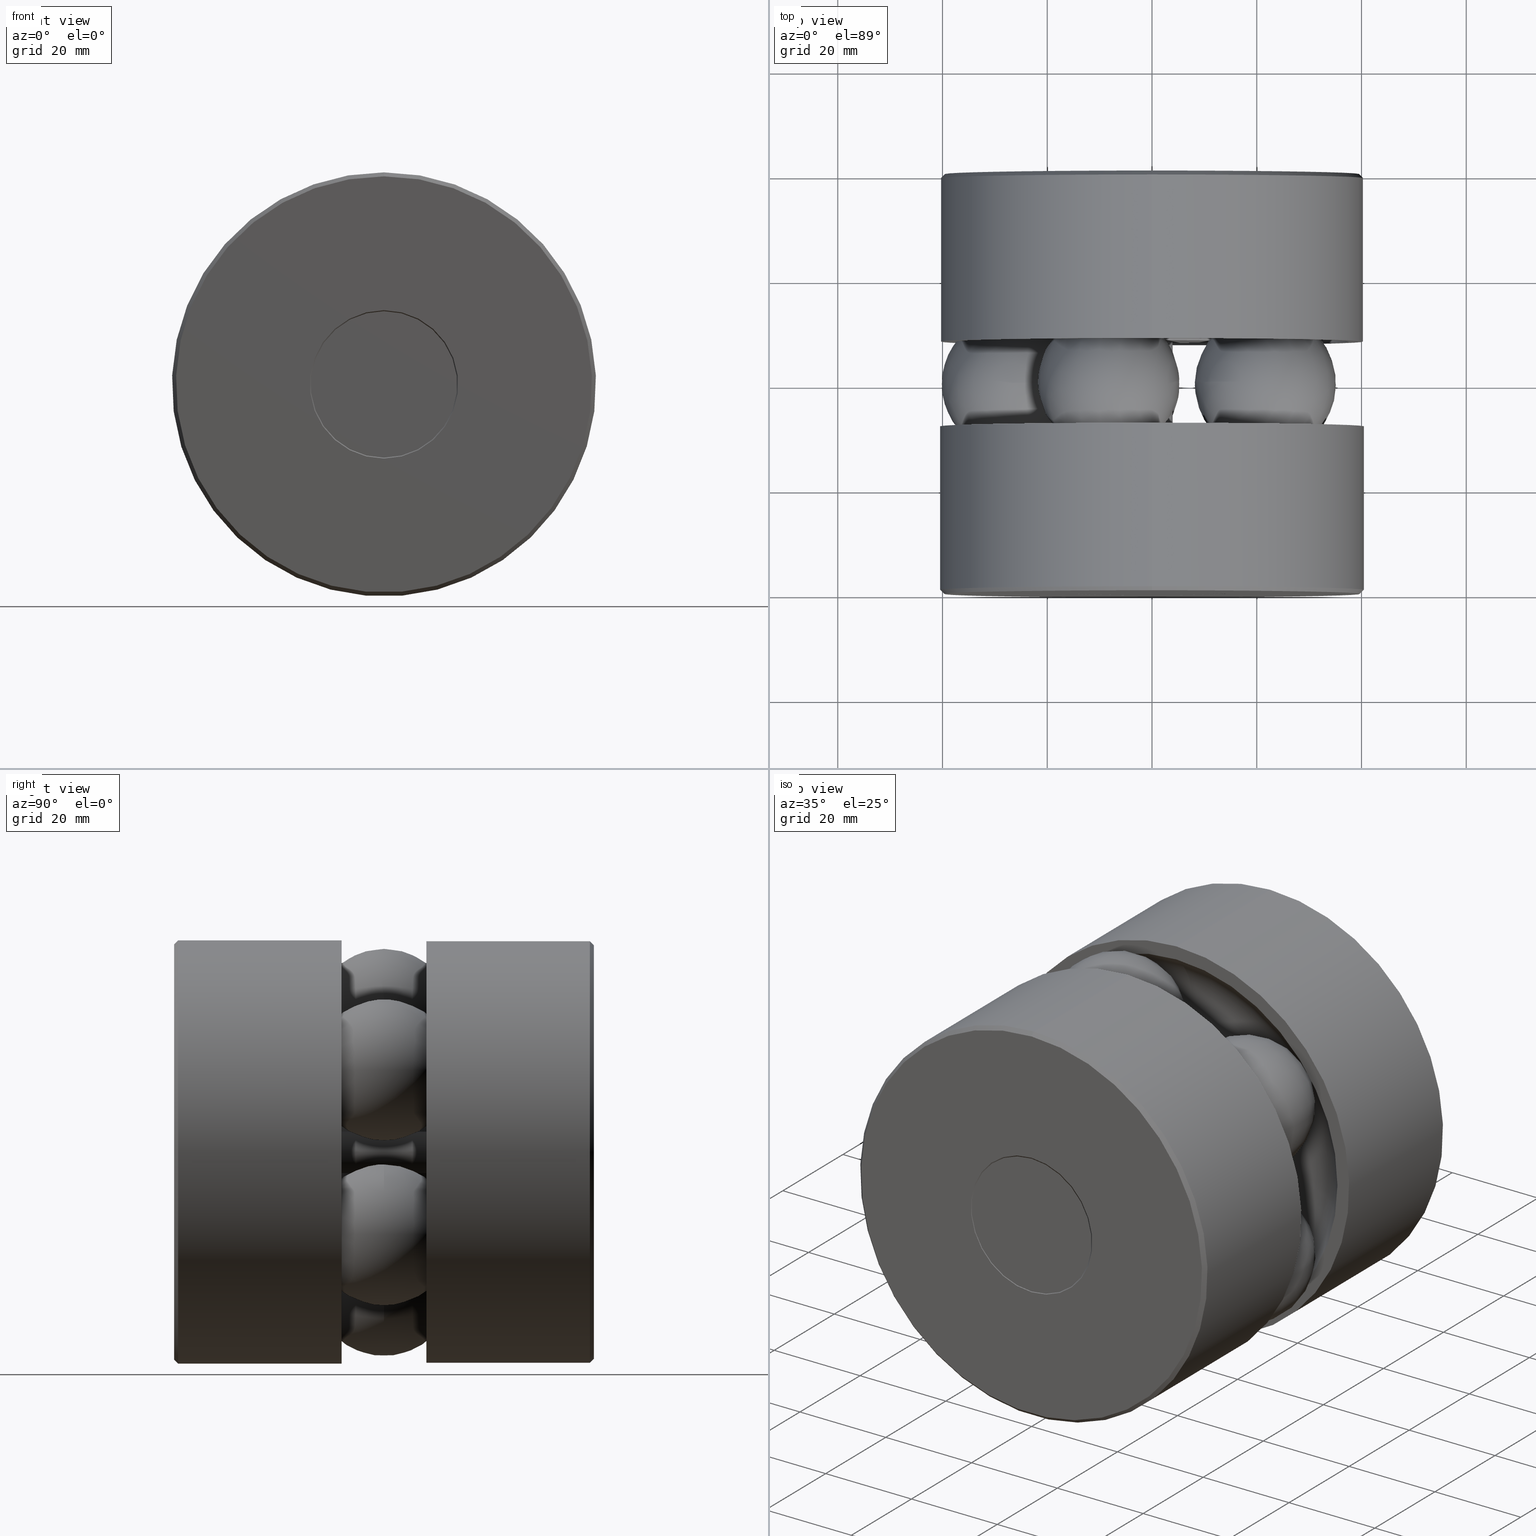
[diagram: canonical four-view strip — front | top / right | iso, engineering-drawing reading convention]
A machine part, canonical four-view strip (front | top / right | iso — engineering-drawing reading convention). The complete STEP part file that produces these views, byte-faithful:
ISO-10303-21;
HEADER;
FILE_DESCRIPTION (( 'STEP AP203' ),
    '1' );
FILE_NAME ('T-114RG_T-114RG-3003.step',
    '2016-02-04T16:15:54',
    ( '' ),
    ( '' ),
    'SwSTEP 2.0',
    'SolidWorks 2016',
    '' );
FILE_SCHEMA (( 'CONFIG_CONTROL_DESIGN' ));
ENDSEC;

DATA;
#1 = ORIENTED_EDGE ( 'NONE', *, *, #415, .F. ) ;
#2 = AXIS2_PLACEMENT_3D ( 'NONE', #74, #32, #29 ) ;
#3 = DIRECTION ( 'NONE',  ( 0.0000000000000000000, 0.0000000000000000000, 1.000000000000000000 ) ) ;
#4 = ORIENTED_EDGE ( 'NONE', *, *, #241, .T. ) ;
#5 = DIRECTION ( 'NONE',  ( -0.0000000000000000000, 1.000000000000000000, -0.0000000000000000000 ) ) ;
#6 = FACE_OUTER_BOUND ( 'NONE', #25, .T. ) ;
#7 = SECURITY_CLASSIFICATION_LEVEL ( 'unclassified' ) ;
#8 = DIRECTION ( 'NONE',  ( -0.0000000000000000000, 1.000000000000000000, -0.0000000000000000000 ) ) ;
#9 = CARTESIAN_POINT ( 'NONE',  ( 0.0000000000000000000, 3.125999999999999000, 0.0000000000000000000 ) ) ;
#10 = CYLINDRICAL_SURFACE ( 'NONE', #149, 1.594000000000000100 ) ;
#11 = EDGE_LOOP ( 'NONE', ( #449 ) ) ;
#12 = AXIS2_PLACEMENT_3D ( 'NONE', #456, #389, #387 ) ;
#13 = AXIS2_PLACEMENT_3D ( 'NONE', #534, #533, #513 ) ;
#14 = PRODUCT_DEFINITION ( 'UNKNOWN', '', #169, #218 ) ;
#15 = CARTESIAN_POINT ( 'NONE',  ( 0.0000000000000000000, 1.259399999999999200, 0.0000000000000000000 ) ) ;
#16 = LENGTH_MEASURE_WITH_UNIT ( LENGTH_MEASURE( 0.02539999999999999900 ), #521 );
#17 = CARTESIAN_POINT ( 'NONE',  ( 0.0000000000000000000, 1.896600000000000300, 0.0000000000000000000 ) ) ;
#18 = ORIENTED_EDGE ( 'NONE', *, *, #489, .T. ) ;
#19 = EDGE_LOOP ( 'NONE', ( #383 ) ) ;
#20 = FACE_OUTER_BOUND ( 'NONE', #289, .T. ) ;
#21 = DIRECTION ( 'NONE',  ( -0.0000000000000000000, 1.000000000000000000, -0.0000000000000000000 ) ) ;
#22 = COORDINATED_UNIVERSAL_TIME_OFFSET ( 5, 0, .BEHIND. ) ;
#23 = FACE_OUTER_BOUND ( 'NONE', #277, .T. ) ;
#24 = EDGE_CURVE ( 'NONE', #239, #239, #364, .T. ) ;
#25 = EDGE_LOOP ( 'NONE', ( #41 ) ) ;
#26 = CARTESIAN_POINT ( 'NONE',  ( 0.0000000000000000000, 3.155999999999999700, 0.0000000000000000000 ) ) ;
#27 = DIRECTION ( 'NONE',  ( 0.0000000000000000000, 0.0000000000000000000, 1.000000000000000000 ) ) ;
#28 = ADVANCED_FACE ( 'NONE', ( #446 ), #430, .T. ) ;
#29 = DIRECTION ( 'NONE',  ( 0.0000000000000000000, 0.0000000000000000000, 1.000000000000000000 ) ) ;
#30 = VERTEX_POINT ( 'NONE', #193 ) ;
#31 = EDGE_LOOP ( 'NONE', ( #178 ) ) ;
#32 = DIRECTION ( 'NONE',  ( -0.0000000000000000000, 1.000000000000000000, 0.0000000000000000000 ) ) ;
#33 = AXIS2_PLACEMENT_3D ( 'NONE', #26, #21, #27 ) ;
#34 = CLOSED_SHELL ( 'NONE', ( #529 ) ) ;
#35 = ORIENTED_EDGE ( 'NONE', *, *, #271, .F. ) ;
#36 = CARTESIAN_POINT ( 'NONE',  ( 0.0000000000000000000, 2.761499999999999800, 0.0000000000000000000 ) ) ;
#37 = LOCAL_TIME ( 11, 15, 54.00000000000000000, #162 ) ;
#38 = PLANE ( 'NONE',  #2 ) ;
#39 = FACE_OUTER_BOUND ( 'NONE', #259, .T. ) ;
#40 = ORIENTED_EDGE ( 'NONE', *, *, #24, .F. ) ;
#41 = ORIENTED_EDGE ( 'NONE', *, *, #395, .T. ) ;
#42 = ADVANCED_FACE ( 'NONE', ( #307, #339 ), #223, .T. ) ;
#43 = APPLICATION_PROTOCOL_DEFINITION ( 'international standard', 'config_control_design', 1994, #306 ) ;
#44 = MANIFOLD_SOLID_BREP ( 'BALLS[2]', #262 ) ;
#45 = CARTESIAN_POINT ( 'NONE',  ( 0.0000000000000000000, 2.761499999999999800, 0.1560000000000004700 ) ) ;
#46 = AXIS2_PLACEMENT_3D ( 'NONE', #468, #464, #461 ) ;
#47 = ADVANCED_FACE ( 'NONE', ( #294 ), #110, .T. ) ;
#48 = DIMENSIONAL_EXPONENTS ( 1.000000000000000000, 0.0000000000000000000, 0.0000000000000000000, 0.0000000000000000000, 0.0000000000000000000, 0.0000000000000000000, 0.0000000000000000000 ) ;
#49 = APPROVAL ( #325, 'UNSPECIFIED' ) ;
#50 = VERTEX_POINT ( 'NONE', #293 ) ;
#51 = DIRECTION ( 'NONE',  ( -0.0000000000000000000, 1.000000000000000000, -0.0000000000000000000 ) ) ;
#52 = ORIENTED_EDGE ( 'NONE', *, *, #90, .F. ) ;
#53 = EDGE_LOOP ( 'NONE', ( #220 ) ) ;
#54 = CIRCLE ( 'NONE', #451, 0.1610000000000004800 ) ;
#55 = ORIENTED_EDGE ( 'NONE', *, *, #311, .F. ) ;
#56 = APPROVAL_DATE_TIME ( #176, #202 ) ;
#57 = FACE_OUTER_BOUND ( 'NONE', #113, .T. ) ;
#58 = DIRECTION ( 'NONE',  ( 0.0000000000000000000, -1.000000000000000000, 0.0000000000000000000 ) ) ;
#59 = CARTESIAN_POINT ( 'NONE',  ( 0.0000000000000000000, 3.155999999999999700, 0.0000000000000000000 ) ) ;
#60 = ORIENTED_EDGE ( 'NONE', *, *, #147, .F. ) ;
#61 = EDGE_CURVE ( 'NONE', #92, #92, #238, .T. ) ;
#62 = CARTESIAN_POINT ( 'NONE',  ( 0.0000000000000000000, 0.0000000000000000000, 0.0000000000000000000 ) ) ;
#63 = VERTEX_POINT ( 'NONE', #344 ) ;
#64 = DIRECTION ( 'NONE',  ( 0.0000000000000000000, 0.0000000000000000000, 1.000000000000000000 ) ) ;
#65 = EDGE_LOOP ( 'NONE', ( #435 ) ) ;
#66 = ORIENTED_EDGE ( 'NONE', *, *, #415, .T. ) ;
#67 = AXIS2_PLACEMENT_3D ( 'NONE', #75, #219, #362 ) ;
#68 = DATE_TIME_ROLE ( 'creation_date' ) ;
#69 = APPROVAL_PERSON_ORGANIZATION ( #189, #202, #411 ) ;
#70 = FACE_OUTER_BOUND ( 'NONE', #438, .T. ) ;
#71 = EDGE_LOOP ( 'NONE', ( #347 ) ) ;
#72 = CARTESIAN_POINT ( 'NONE',  ( 0.0000000000000000000, 3.125999999999999000, 1.587000000000000000 ) ) ;
#73 = DIRECTION ( 'NONE',  ( 0.0000000000000000000, 0.0000000000000000000, -1.000000000000000000 ) ) ;
#74 = CARTESIAN_POINT ( 'NONE',  ( -0.5575710678118610500, 3.155999999999999700, 0.0000000000000000000 ) ) ;
#75 = CARTESIAN_POINT ( 'NONE',  ( 0.0000000000000000000, -1.396708663576377100E-017, 0.0000000000000000000 ) ) ;
#76 = DIRECTION ( 'NONE',  ( 0.0000000000000000000, 0.0000000000000000000, 1.000000000000000000 ) ) ;
#77 = VERTEX_POINT ( 'NONE', #195 ) ;
#78 = AXIS2_PLACEMENT_3D ( 'NONE', #417, #445, #355 ) ;
#79 = EDGE_LOOP ( 'NONE', ( #40 ) ) ;
#80 = ORIENTED_EDGE ( 'NONE', *, *, #535, .T. ) ;
#81 = CC_DESIGN_APPROVAL ( #49, ( #14 ) ) ;
#82 = DIRECTION ( 'NONE',  ( 0.0000000000000000000, 0.0000000000000000000, 1.000000000000000000 ) ) ;
#83 = CLOSED_SHELL ( 'NONE', ( #304 ) ) ;
#84 = COORDINATED_UNIVERSAL_TIME_OFFSET ( 5, 0, .BEHIND. ) ;
#85 = DIRECTION ( 'NONE',  ( 0.0000000000000000000, -0.0000000000000000000, -1.000000000000000000 ) ) ;
#86 = FACE_BOUND ( 'NONE', #106, .T. ) ;
#87 = DIRECTION ( 'NONE',  ( 0.0000000000000000000, -1.000000000000000000, 0.0000000000000000000 ) ) ;
#88 = DIRECTION ( 'NONE',  ( 0.0000000000000000000, 0.0000000000000000000, 1.000000000000000000 ) ) ;
#89 = DIRECTION ( 'NONE',  ( -0.0000000000000000000, 1.000000000000000000, -0.0000000000000000000 ) ) ;
#90 = EDGE_CURVE ( 'NONE', #315, #315, #243, .T. ) ;
#91 = AXIS2_PLACEMENT_3D ( 'NONE', #275, #285, #287 ) ;
#92 = VERTEX_POINT ( 'NONE', #72 ) ;
#93 = ADVANCED_FACE ( 'NONE', ( ), #173, .T. ) ;
#94 = APPROVAL_STATUS ( 'not_yet_approved' ) ;
#95 = EDGE_LOOP ( 'NONE', ( #481 ) ) ;
#96 = CARTESIAN_POINT ( 'NONE',  ( 0.0000000000000000000, 0.03000000000000011700, 0.0000000000000000000 ) ) ;
#97 = AXIS2_PLACEMENT_3D ( 'NONE', #36, #376, #236 ) ;
#98 = LOCAL_TIME ( 11, 15, 54.00000000000000000, #224 ) ;
#99 = DIRECTION ( 'NONE',  ( 0.0000000000000000000, 0.0000000000000000000, 1.000000000000000000 ) ) ;
#100 =( NAMED_UNIT ( * ) SI_UNIT ( $, .STERADIAN. ) SOLID_ANGLE_UNIT ( ) );
#101 = SPHERICAL_SURFACE ( 'NONE', #319, 0.5309999999999999200 ) ;
#102 = DIRECTION ( 'NONE',  ( 0.0000000000000000000, 0.0000000000000000000, 1.000000000000000000 ) ) ;
#103 = CIRCLE ( 'NONE', #358, 1.557000000000000400 ) ;
#104 = EDGE_LOOP ( 'NONE', ( #18 ) ) ;
#105 = CARTESIAN_POINT ( 'NONE',  ( 0.0000000000000000000, 3.155999999999999700, 0.5504999999999962100 ) ) ;
#106 = EDGE_LOOP ( 'NONE', ( #247 ) ) ;
#107 = AXIS2_PLACEMENT_3D ( 'NONE', #323, #320, #314 ) ;
#108 = DIRECTION ( 'NONE',  ( 0.0000000000000000000, -0.0000000000000000000, -1.000000000000000000 ) ) ;
#109 = CC_DESIGN_PERSON_AND_ORGANIZATION_ASSIGNMENT ( #204, #443, ( #14 ) ) ;
#110 = PLANE ( 'NONE',  #478 ) ;
#111 = DIRECTION ( 'NONE',  ( -0.0000000000000000000, 1.000000000000000000, -0.0000000000000000000 ) ) ;
#112 = ORGANIZATION ( 'UNSPECIFIED', 'UNSPECIFIED', '' ) ;
#113 = EDGE_LOOP ( 'NONE', ( #170 ) ) ;
#114 = CARTESIAN_POINT ( 'NONE',  ( 0.0000000000000000000, 0.0000000000000000000, 0.0000000000000000000 ) ) ;
#115 = FACE_BOUND ( 'NONE', #506, .T. ) ;
#116 = EDGE_CURVE ( 'NONE', #196, #196, #192, .T. ) ;
#117 = FACE_OUTER_BOUND ( 'NONE', #71, .T. ) ;
#118 = DIRECTION ( 'NONE',  ( 0.0000000000000000000, 0.0000000000000000000, -1.000000000000000000 ) ) ;
#119 = AXIS2_PLACEMENT_3D ( 'NONE', #356, #276, #520 ) ;
#120 = ORIENTED_EDGE ( 'NONE', *, *, #395, .F. ) ;
#121 = ORIENTED_EDGE ( 'NONE', *, *, #535, .F. ) ;
#122 = CARTESIAN_POINT ( 'NONE',  ( 0.0000000000000000000, -1.396708663576377100E-017, 0.0000000000000000000 ) ) ;
#123 = CARTESIAN_POINT ( 'NONE',  ( -0.6292000000000005400, 1.896600000000000300, 0.0000000000000000000 ) ) ;
#124 = EDGE_LOOP ( 'NONE', ( #55 ) ) ;
#125 = ORIENTED_EDGE ( 'NONE', *, *, #116, .F. ) ;
#126 = EDGE_LOOP ( 'NONE', ( #121 ) ) ;
#127 = CIRCLE ( 'NONE', #231, 0.5504999999999956600 ) ;
#128 = APPROVAL_DATE_TIME ( #250, #402 ) ;
#129 = CIRCLE ( 'NONE', #119, 1.587000000000000000 ) ;
#130 = ORIENTED_EDGE ( 'NONE', *, *, #366, .F. ) ;
#131 = FACE_OUTER_BOUND ( 'NONE', #267, .T. ) ;
#132 = AXIS2_PLACEMENT_3D ( 'NONE', #374, #337, #336 ) ;
#133 = PLANE ( 'NONE',  #465 ) ;
#134 = CC_DESIGN_DATE_AND_TIME_ASSIGNMENT ( #308, #68, ( #14 ) ) ;
#135 = DIRECTION ( 'NONE',  ( 0.0000000000000000000, -1.000000000000000000, 0.0000000000000000000 ) ) ;
#136 = DIRECTION ( 'NONE',  ( -0.0000000000000000000, 1.000000000000000000, -0.0000000000000000000 ) ) ;
#137 = CARTESIAN_POINT ( 'NONE',  ( 0.0000000000000000000, 0.0000000000000000000, 0.0000000000000000000 ) ) ;
#138 = EDGE_LOOP ( 'NONE', ( #158 ) ) ;
#139 = EDGE_LOOP ( 'NONE', ( #35 ) ) ;
#140 = FACE_BOUND ( 'NONE', #126, .T. ) ;
#141 = DIRECTION ( 'NONE',  ( 0.0000000000000000000, 0.0000000000000000000, 1.000000000000000000 ) ) ;
#142 = CLOSED_SHELL ( 'NONE', ( #453, #42, #450, #384, #350, #222, #348, #269 ) ) ;
#143 = APPROVAL_PERSON_ORGANIZATION ( #264, #402, #166 ) ;
#144 = CYLINDRICAL_SURFACE ( 'NONE', #187, 0.1560000000000002500 ) ;
#145 = EDGE_LOOP ( 'NONE', ( #209 ) ) ;
#146 = CARTESIAN_POINT ( 'NONE',  ( 0.0000000000000000000, 0.03000000000000011700, 1.594000000000000100 ) ) ;
#147 = EDGE_CURVE ( 'NONE', #77, #77, #327, .T. ) ;
#148 = CARTESIAN_POINT ( 'NONE',  ( 0.0000000000000000000, 0.3944999999999999600, 0.1560000000000000300 ) ) ;
#149 = AXIS2_PLACEMENT_3D ( 'NONE', #365, #313, #76 ) ;
#150 = DIRECTION ( 'NONE',  ( 0.0000000000000000000, 0.0000000000000000000, 1.000000000000000000 ) ) ;
#151 = MANIFOLD_SOLID_BREP ( 'BALLS[3]', #34 ) ;
#152 = DIRECTION ( 'NONE',  ( -0.0000000000000000000, 1.000000000000000000, -0.0000000000000000000 ) ) ;
#153 = VERTEX_POINT ( 'NONE', #345 ) ;
#154 = CARTESIAN_POINT ( 'NONE',  ( 0.0000000000000000000, 3.155999999999999700, 0.0000000000000000000 ) ) ;
#155 = ORIENTED_EDGE ( 'NONE', *, *, #366, .T. ) ;
#156 = EDGE_LOOP ( 'NONE', ( #171 ) ) ;
#157 = AXIS2_PLACEMENT_3D ( 'NONE', #62, #111, #286 ) ;
#158 = ORIENTED_EDGE ( 'NONE', *, *, #61, .T. ) ;
#159 = DIRECTION ( 'NONE',  ( -0.0000000000000000000, 1.000000000000000000, 0.0000000000000000000 ) ) ;
#160 = FACE_OUTER_BOUND ( 'NONE', #65, .T. ) ;
#161 = EDGE_LOOP ( 'NONE', ( #179 ) ) ;
#162 = COORDINATED_UNIVERSAL_TIME_OFFSET ( 5, 0, .BEHIND. ) ;
#163 = CONICAL_SURFACE ( 'NONE', #33, 0.5504999999999962100, 0.7853981633974430600 ) ;
#164 = EDGE_LOOP ( 'NONE', ( #80 ) ) ;
#165 = ADVANCED_FACE ( 'NONE', ( #261, #140 ), #349, .T. ) ;
#166 = APPROVAL_ROLE ( '' ) ;
#167 = AXIS2_PLACEMENT_3D ( 'NONE', #333, #328, #334 ) ;
#168 = VERTEX_POINT ( 'NONE', #423 ) ;
#169 = PRODUCT_DEFINITION_FORMATION_WITH_SPECIFIED_SOURCE ( 'ANY', '', #338, .NOT_KNOWN. ) ;
#170 = ORIENTED_EDGE ( 'NONE', *, *, #458, .T. ) ;
#171 = ORIENTED_EDGE ( 'NONE', *, *, #458, .F. ) ;
#172 = CARTESIAN_POINT ( 'NONE',  ( 0.0000000000000000000, 1.577999999999999800, 0.0000000000000000000 ) ) ;
#173 = SPHERICAL_SURFACE ( 'NONE', #13, 0.5309999999999999200 ) ;
#174 = PERSON_AND_ORGANIZATION_ROLE ( 'design_supplier' ) ;
#175 = MECHANICAL_CONTEXT ( 'NONE', #306, 'mechanical' ) ;
#176 = DATE_AND_TIME ( #295, #405 ) ;
#177 = FACE_OUTER_BOUND ( 'NONE', #11, .T. ) ;
#178 = ORIENTED_EDGE ( 'NONE', *, *, #436, .T. ) ;
#179 = ORIENTED_EDGE ( 'NONE', *, *, #299, .T. ) ;
#180 = EDGE_CURVE ( 'NONE', #503, #503, #54, .T. ) ;
#181 = DIRECTION ( 'NONE',  ( 0.0000000000000000000, -0.0000000000000000000, -1.000000000000000000 ) ) ;
#182 = AXIS2_PLACEMENT_3D ( 'NONE', #298, #8, #351 ) ;
#183 = VERTEX_POINT ( 'NONE', #447 ) ;
#184 = ORIENTED_EDGE ( 'NONE', *, *, #489, .F. ) ;
#185 = EDGE_LOOP ( 'NONE', ( #120 ) ) ;
#186 = DIRECTION ( 'NONE',  ( 0.0000000000000000000, 0.0000000000000000000, 1.000000000000000000 ) ) ;
#187 = AXIS2_PLACEMENT_3D ( 'NONE', #203, #499, #217 ) ;
#188 = DIRECTION ( 'NONE',  ( -0.0000000000000000000, 1.000000000000000000, -0.0000000000000000000 ) ) ;
#189 = PERSON_AND_ORGANIZATION ( #296, #112 ) ;
#190 = FACE_BOUND ( 'NONE', #139, .T. ) ;
#191 = ORIENTED_EDGE ( 'NONE', *, *, #340, .F. ) ;
#192 = CIRCLE ( 'NONE', #526, 0.1610000000000000300 ) ;
#193 = CARTESIAN_POINT ( 'NONE',  ( 0.0000000000000000000, 3.155999999999999700, 1.557000000000000400 ) ) ;
#194 = DIRECTION ( 'NONE',  ( -0.8090169943749507800, 0.0000000000000000000, -0.5877852522924687000 ) ) ;
#195 = CARTESIAN_POINT ( 'NONE',  ( 0.0000000000000000000, 1.259399999999999200, 0.6292000000000006500 ) ) ;
#196 = VERTEX_POINT ( 'NONE', #397 ) ;
#197 = APPROVAL_STATUS ( 'not_yet_approved' ) ;
#198 = AXIS2_PLACEMENT_3D ( 'NONE', #270, #268, #256 ) ;
#199 = EDGE_LOOP ( 'NONE', ( #125 ) ) ;
#200 = CARTESIAN_POINT ( 'NONE',  ( 0.0000000000000000000, 1.896600000000000300, 1.587000000000000000 ) ) ;
#201 = ORIENTED_EDGE ( 'NONE', *, *, #147, .T. ) ;
#202 = APPROVAL ( #94, 'UNSPECIFIED' ) ;
#203 = CARTESIAN_POINT ( 'NONE',  ( 0.0000000000000000000, 0.0000000000000000000, 0.0000000000000000000 ) ) ;
#204 = PERSON_AND_ORGANIZATION ( #296, #112 ) ;
#205 = CYLINDRICAL_SURFACE ( 'NONE', #420, 0.1610000000000001200 ) ;
#206 = APPLICATION_CONTEXT ( 'configuration controlled 3d designs of mechanical parts and assemblies' ) ;
#207 = DIRECTION ( 'NONE',  ( 0.0000000000000000000, 0.0000000000000000000, 1.000000000000000000 ) ) ;
#208 = EDGE_LOOP ( 'NONE', ( #488 ) ) ;
#209 = ORIENTED_EDGE ( 'NONE', *, *, #510, .T. ) ;
#210 = EDGE_LOOP ( 'NONE', ( #473 ) ) ;
#211 = EDGE_CURVE ( 'NONE', #409, #409, #505, .T. ) ;
#212 = DIRECTION ( 'NONE',  ( -0.0000000000000000000, 1.000000000000000000, -0.0000000000000000000 ) ) ;
#213 = DIRECTION ( 'NONE',  ( 0.0000000000000000000, 0.0000000000000000000, 1.000000000000000000 ) ) ;
#214 = AXIS2_PLACEMENT_3D ( 'NONE', #476, #454, #108 ) ;
#215 = CONICAL_SURFACE ( 'NONE', #182, 0.1610000000000004800, 0.7853981633974433900 ) ;
#216 = CLOSED_SHELL ( 'NONE', ( #93 ) ) ;
#217 = DIRECTION ( 'NONE',  ( 0.0000000000000000000, 0.0000000000000000000, 1.000000000000000000 ) ) ;
#218 = DESIGN_CONTEXT ( 'detailed design', #206, 'design' ) ;
#219 = DIRECTION ( 'NONE',  ( -0.0000000000000000000, 1.000000000000000000, -0.0000000000000000000 ) ) ;
#220 = ORIENTED_EDGE ( 'NONE', *, *, #340, .T. ) ;
#221 = ADVANCED_BREP_SHAPE_REPRESENTATION ( 'T-114RG_T-114RG-3003', ( #439, #357, #523, #410, #491, #44, #151, #254, #504 ), #408 ) ;
#222 = ADVANCED_FACE ( 'NONE', ( #131, #115 ), #401, .T. ) ;
#223 = CONICAL_SURFACE ( 'NONE', #385, 1.594000000000000100, 0.7853981633974430600 ) ;
#224 = COORDINATED_UNIVERSAL_TIME_OFFSET ( 5, 0, .BEHIND. ) ;
#225 = CARTESIAN_POINT ( 'NONE',  ( 0.0000000000000000000, 0.0000000000000000000, 0.0000000000000000000 ) ) ;
#226 = DIRECTION ( 'NONE',  ( -0.8090169943749422300, 0.0000000000000000000, 0.5877852522924802400 ) ) ;
#227 = DIRECTION ( 'NONE',  ( -0.5877852522924687000, 0.0000000000000000000, 0.8090169943749507800 ) ) ;
#228 = FACE_OUTER_BOUND ( 'NONE', #495, .T. ) ;
#229 = EDGE_LOOP ( 'NONE', ( #524 ) ) ;
#230 = DIRECTION ( 'NONE',  ( -0.0000000000000000000, 1.000000000000000000, -0.0000000000000000000 ) ) ;
#231 = AXIS2_PLACEMENT_3D ( 'NONE', #225, #212, #207 ) ;
#232 = CARTESIAN_POINT ( 'NONE',  ( 0.8527039120711981100, 1.577999999999999800, 0.6195256559162619600 ) ) ;
#233 = DIRECTION ( 'NONE',  ( 0.0000000000000000000, 0.0000000000000000000, 1.000000000000000000 ) ) ;
#234 = CC_DESIGN_APPROVAL ( #202, ( #169 ) ) ;
#235 = CARTESIAN_POINT ( 'NONE',  ( 0.0000000000000000000, 1.259399999999999600, 0.0000000000000000000 ) ) ;
#236 = DIRECTION ( 'NONE',  ( 0.0000000000000000000, 0.0000000000000000000, 1.000000000000000000 ) ) ;
#237 = EDGE_LOOP ( 'NONE', ( #66 ) ) ;
#238 = CIRCLE ( 'NONE', #452, 1.587000000000000000 ) ;
#239 = VERTEX_POINT ( 'NONE', #148 ) ;
#240 = ORIENTED_EDGE ( 'NONE', *, *, #311, .T. ) ;
#241 = EDGE_CURVE ( 'NONE', #302, #302, #375, .T. ) ;
#242 = AXIS2_PLACEMENT_3D ( 'NONE', #235, #51, #102 ) ;
#243 = CIRCLE ( 'NONE', #502, 0.6292000000000005400 ) ;
#244 = ORIENTED_EDGE ( 'NONE', *, *, #211, .F. ) ;
#245 = DIRECTION ( 'NONE',  ( 0.3090169943749582200, 0.0000000000000000000, 0.9510565162951500900 ) ) ;
#246 = CARTESIAN_POINT ( 'NONE',  ( 0.0000000000000000000, 0.03000000000000011700, 0.0000000000000000000 ) ) ;
#247 = ORIENTED_EDGE ( 'NONE', *, *, #116, .T. ) ;
#248 = PLANE ( 'NONE',  #214 ) ;
#249 = FACE_OUTER_BOUND ( 'NONE', #199, .T. ) ;
#250 = DATE_AND_TIME ( #367, #457 ) ;
#251 = FACE_OUTER_BOUND ( 'NONE', #185, .T. ) ;
#252 = CARTESIAN_POINT ( 'NONE',  ( 0.8527039120711891200, 1.577999999999999800, -0.6195256559162742900 ) ) ;
#253 = DIRECTION ( 'NONE',  ( 0.0000000000000000000, 0.0000000000000000000, 1.000000000000000000 ) ) ;
#254 = MANIFOLD_SOLID_BREP ( 'BALLS[4]', #83 ) ;
#255 = ADVANCED_FACE ( 'NONE', ( #160, #20 ), #483, .F. ) ;
#256 = DIRECTION ( 'NONE',  ( 0.0000000000000000000, 0.0000000000000000000, 1.000000000000000000 ) ) ;
#257 = AXIS2_PLACEMENT_3D ( 'NONE', #281, #279, #245 ) ;
#258 = CC_DESIGN_PERSON_AND_ORGANIZATION_ASSIGNMENT ( #486, #300, ( #169 ) ) ;
#259 = EDGE_LOOP ( 'NONE', ( #244 ) ) ;
#260 = EDGE_LOOP ( 'NONE', ( #1 ) ) ;
#261 = FACE_OUTER_BOUND ( 'NONE', #138, .T. ) ;
#262 = CLOSED_SHELL ( 'NONE', ( #316 ) ) ;
#263 = PERSON_AND_ORGANIZATION_ROLE ( 'classification_officer' ) ;
#264 = PERSON_AND_ORGANIZATION ( #296, #112 ) ;
#265 = CIRCLE ( 'NONE', #97, 0.1560000000000004700 ) ;
#266 = EDGE_LOOP ( 'NONE', ( #130 ) ) ;
#267 = EDGE_LOOP ( 'NONE', ( #201 ) ) ;
#268 = DIRECTION ( 'NONE',  ( -0.0000000000000000000, 1.000000000000000000, -0.0000000000000000000 ) ) ;
#269 = ADVANCED_FACE ( 'NONE', ( #6, #425 ), #343, .T. ) ;
#270 = CARTESIAN_POINT ( 'NONE',  ( 0.0000000000000000000, 1.259399999999999200, 0.0000000000000000000 ) ) ;
#271 = EDGE_CURVE ( 'NONE', #183, #183, #467, .T. ) ;
#272 = AXIS2_PLACEMENT_3D ( 'NONE', #114, #369, #522 ) ;
#273 = ADVANCED_FACE ( 'NONE', ( #322, #359 ), #434, .T. ) ;
#274 = VERTEX_POINT ( 'NONE', #419 ) ;
#275 = CARTESIAN_POINT ( 'NONE',  ( -0.5575710678118605000, -8.411894062987051900E-017, 0.0000000000000000000 ) ) ;
#276 = DIRECTION ( 'NONE',  ( -0.0000000000000000000, 1.000000000000000000, -0.0000000000000000000 ) ) ;
#277 = EDGE_LOOP ( 'NONE', ( #155 ) ) ;
#278 = ORIENTED_EDGE ( 'NONE', *, *, #180, .F. ) ;
#279 = DIRECTION ( 'NONE',  ( 0.9510565162951500900, 0.0000000000000000000, -0.3090169943749582200 ) ) ;
#280 = TOROIDAL_SURFACE ( 'NONE', #370, 1.054000000000000000, 0.5310000000000000300 ) ;
#281 = CARTESIAN_POINT ( 'NONE',  ( -0.3257039120712059700, 1.577999999999999800, -1.002413568175088100 ) ) ;
#282 = PERSON_AND_ORGANIZATION ( #296, #112 ) ;
#283 = CIRCLE ( 'NONE', #67, 0.5575710678118605000 ) ;
#284 = ORIENTED_EDGE ( 'NONE', *, *, #510, .F. ) ;
#285 = DIRECTION ( 'NONE',  ( 0.0000000000000000000, -1.000000000000000000, 0.0000000000000000000 ) ) ;
#286 = DIRECTION ( 'NONE',  ( 0.0000000000000000000, 0.0000000000000000000, 1.000000000000000000 ) ) ;
#287 = DIRECTION ( 'NONE',  ( 0.0000000000000000000, -0.0000000000000000000, -1.000000000000000000 ) ) ;
#288 = VERTEX_POINT ( 'NONE', #146 ) ;
#289 = EDGE_LOOP ( 'NONE', ( #284 ) ) ;
#290 = AXIS2_PLACEMENT_3D ( 'NONE', #154, #152, #150 ) ;
#291 = CLOSED_SHELL ( 'NONE', ( #28, #47, #414, #428, #273 ) ) ;
#292 = CC_DESIGN_PERSON_AND_ORGANIZATION_ASSIGNMENT ( #392, #174, ( #169 ) ) ;
#293 = CARTESIAN_POINT ( 'NONE',  ( 0.0000000000000000000, -1.396708663576377100E-017, 0.5575710678118605000 ) ) ;
#294 = FACE_OUTER_BOUND ( 'NONE', #53, .T. ) ;
#295 = CALENDAR_DATE ( 2016, 4, 2 ) ;
#296 = PERSON ( 'UNSPECIFIED', 'UNSPECIFIED', 'UNSPECIFIED', ('UNSPECIFIED'), ('UNSPECIFIED'), ('UNSPECIFIED') ) ;
#297 = CONICAL_SURFACE ( 'NONE', #442, 0.5575710678118605000, 0.7853981633974428400 ) ;
#298 = CARTESIAN_POINT ( 'NONE',  ( 0.0000000000000000000, 2.759428932188135300, 0.0000000000000000000 ) ) ;
#299 = EDGE_CURVE ( 'NONE', #63, #63, #416, .T. ) ;
#300 = PERSON_AND_ORGANIZATION_ROLE ( 'creator' ) ;
#301 = AXIS2_PLACEMENT_3D ( 'NONE', #341, #118, #485 ) ;
#302 = VERTEX_POINT ( 'NONE', #310 ) ;
#303 = CARTESIAN_POINT ( 'NONE',  ( 0.0000000000000000000, 0.0000000000000000000, 0.5504999999999956600 ) ) ;
#304 = ADVANCED_FACE ( 'NONE', ( ), #542, .T. ) ;
#305 =( CONVERSION_BASED_UNIT ( 'INCH', #16 ) LENGTH_UNIT ( ) NAMED_UNIT ( #48 ) );
#306 = APPLICATION_CONTEXT ( 'configuration controlled 3d designs of mechanical parts and assemblies' ) ;
#307 = FACE_BOUND ( 'NONE', #208, .T. ) ;
#308 = DATE_AND_TIME ( #412, #507 ) ;
#309 = FACE_OUTER_BOUND ( 'NONE', #260, .T. ) ;
#310 = CARTESIAN_POINT ( 'NONE',  ( 0.0000000000000000000, 1.896600000000000300, 0.1610000000000002800 ) ) ;
#311 = EDGE_CURVE ( 'NONE', #492, #492, #127, .T. ) ;
#312 = FACE_OUTER_BOUND ( 'NONE', #354, .T. ) ;
#313 = DIRECTION ( 'NONE',  ( -0.0000000000000000000, 1.000000000000000000, -0.0000000000000000000 ) ) ;
#314 = DIRECTION ( 'NONE',  ( 0.0000000000000000000, 0.0000000000000000000, 1.000000000000000000 ) ) ;
#315 = VERTEX_POINT ( 'NONE', #469 ) ;
#316 = ADVANCED_FACE ( 'NONE', ( ), #101, .T. ) ;
#317 = UNCERTAINTY_MEASURE_WITH_UNIT (LENGTH_MEASURE( 1.000000000000000100E-005 ), #305, 'distance_accuracy_value', 'NONE');
#318 = PERSON_AND_ORGANIZATION_ROLE ( 'design_owner' ) ;
#319 = AXIS2_PLACEMENT_3D ( 'NONE', #232, #227, #194 ) ;
#320 = DIRECTION ( 'NONE',  ( -0.0000000000000000000, 1.000000000000000000, -0.0000000000000000000 ) ) ;
#321 = SECURITY_CLASSIFICATION ( '', '', #7 ) ;
#322 = FACE_OUTER_BOUND ( 'NONE', #514, .T. ) ;
#323 = CARTESIAN_POINT ( 'NONE',  ( 0.0000000000000000000, 3.155999999999999700, 0.0000000000000000000 ) ) ;
#324 = APPROVAL_DATE_TIME ( #424, #49 ) ;
#325 = APPROVAL_STATUS ( 'not_yet_approved' ) ;
#326 = FACE_OUTER_BOUND ( 'NONE', #164, .T. ) ;
#327 = CIRCLE ( 'NONE', #46, 0.6292000000000006500 ) ;
#328 = DIRECTION ( 'NONE',  ( 0.0000000000000000000, -1.000000000000000000, 0.0000000000000000000 ) ) ;
#329 = AXIS2_PLACEMENT_3D ( 'NONE', #363, #188, #233 ) ;
#330 = CIRCLE ( 'NONE', #331, 1.478799999999999400 ) ;
#331 = AXIS2_PLACEMENT_3D ( 'NONE', #17, #377, #99 ) ;
#332 = CARTESIAN_POINT ( 'NONE',  ( -0.5504999999999956600, 0.0000000000000000000, 0.0000000000000000000 ) ) ;
#333 = CARTESIAN_POINT ( 'NONE',  ( 0.0000000000000000000, 0.3944999999999999600, 0.0000000000000000000 ) ) ;
#334 = DIRECTION ( 'NONE',  ( 0.0000000000000000000, 0.0000000000000000000, -1.000000000000000000 ) ) ;
#335 = APPROVAL_PERSON_ORGANIZATION ( #431, #49, #474 ) ;
#336 = DIRECTION ( 'NONE',  ( 0.0000000000000000000, 0.0000000000000000000, 1.000000000000000000 ) ) ;
#337 = DIRECTION ( 'NONE',  ( -0.0000000000000000000, 1.000000000000000000, 0.0000000000000000000 ) ) ;
#338 = PRODUCT ( 'T-114RG_T-114RG-3003', 'T-114RG_T-114RG-3003', '', ( #175 ) ) ;
#339 = FACE_OUTER_BOUND ( 'NONE', #266, .T. ) ;
#340 = EDGE_CURVE ( 'NONE', #398, #398, #532, .T. ) ;
#341 = CARTESIAN_POINT ( 'NONE',  ( -1.054000000000000000, 1.577999999999999800, 0.0000000000000000000 ) ) ;
#342 = CLOSED_SHELL ( 'NONE', ( #501, #463, #381, #255, #460, #421, #165, #390 ) ) ;
#343 = PLANE ( 'NONE',  #132 ) ;
#344 = CARTESIAN_POINT ( 'NONE',  ( 0.0000000000000000000, 1.259399999999999200, 1.478799999999999400 ) ) ;
#345 = CARTESIAN_POINT ( 'NONE',  ( 0.0000000000000000000, 1.896600000000000300, 1.478799999999999400 ) ) ;
#346 = FACE_BOUND ( 'NONE', #484, .T. ) ;
#347 = ORIENTED_EDGE ( 'NONE', *, *, #241, .F. ) ;
#348 = ADVANCED_FACE ( 'NONE', ( #519, #312 ), #280, .F. ) ;
#349 = CONICAL_SURFACE ( 'NONE', #427, 1.557000000000000400, 0.7853981633974255200 ) ;
#350 = ADVANCED_FACE ( 'NONE', ( #509, #249 ), #205, .F. ) ;
#351 = DIRECTION ( 'NONE',  ( 0.0000000000000000000, 0.0000000000000000000, 1.000000000000000000 ) ) ;
#352 = CC_DESIGN_PERSON_AND_ORGANIZATION_ASSIGNMENT ( #282, #263, ( #321 ) ) ;
#353 = FACE_OUTER_BOUND ( 'NONE', #156, .T. ) ;
#354 = EDGE_LOOP ( 'NONE', ( #60 ) ) ;
#355 = DIRECTION ( 'NONE',  ( 0.0000000000000000000, 0.0000000000000000000, 1.000000000000000000 ) ) ;
#356 = CARTESIAN_POINT ( 'NONE',  ( 0.0000000000000000000, 1.896600000000000300, 0.0000000000000000000 ) ) ;
#357 = MANIFOLD_SOLID_BREP ( 'Revolve2[2]', #342 ) ;
#358 = AXIS2_PLACEMENT_3D ( 'NONE', #472, #404, #64 ) ;
#359 = FACE_BOUND ( 'NONE', #79, .T. ) ;
#360 = DIRECTION ( 'NONE',  ( 0.0000000000000000000, 0.0000000000000000000, 1.000000000000000000 ) ) ;
#361 = APPLICATION_PROTOCOL_DEFINITION ( 'international standard', 'config_control_design', 1994, #206 ) ;
#362 = DIRECTION ( 'NONE',  ( 0.0000000000000000000, 0.0000000000000000000, 1.000000000000000000 ) ) ;
#363 = CARTESIAN_POINT ( 'NONE',  ( 0.0000000000000000000, 0.3944999999999999600, 0.0000000000000000000 ) ) ;
#364 = CIRCLE ( 'NONE', #329, 0.1560000000000000300 ) ;
#365 = CARTESIAN_POINT ( 'NONE',  ( 0.0000000000000000000, 0.0000000000000000000, 0.0000000000000000000 ) ) ;
#366 = EDGE_CURVE ( 'NONE', #288, #288, #391, .T. ) ;
#367 = CALENDAR_DATE ( 2016, 4, 2 ) ;
#368 = EDGE_LOOP ( 'NONE', ( #52 ) ) ;
#369 = DIRECTION ( 'NONE',  ( -0.0000000000000000000, 1.000000000000000000, -0.0000000000000000000 ) ) ;
#370 = AXIS2_PLACEMENT_3D ( 'NONE', #172, #230, #141 ) ;
#371 = DIRECTION ( 'NONE',  ( -0.0000000000000000000, 1.000000000000000000, -0.0000000000000000000 ) ) ;
#372 = CARTESIAN_POINT ( 'NONE',  ( 0.0000000000000000000, 1.896600000000000300, 0.0000000000000000000 ) ) ;
#373 = CC_DESIGN_DATE_AND_TIME_ASSIGNMENT ( #378, #490, ( #321 ) ) ;
#374 = CARTESIAN_POINT ( 'NONE',  ( -1.594000000000000100, 1.259399999999999200, 0.0000000000000000000 ) ) ;
#375 = CIRCLE ( 'NONE', #525, 0.1610000000000002800 ) ;
#376 = DIRECTION ( 'NONE',  ( -0.0000000000000000000, 1.000000000000000000, -0.0000000000000000000 ) ) ;
#377 = DIRECTION ( 'NONE',  ( -0.0000000000000000000, 1.000000000000000000, -0.0000000000000000000 ) ) ;
#378 = DATE_AND_TIME ( #470, #37 ) ;
#379 = FACE_OUTER_BOUND ( 'NONE', #19, .T. ) ;
#380 =( NAMED_UNIT ( * ) PLANE_ANGLE_UNIT ( ) SI_UNIT ( $, .RADIAN. ) );
#381 = ADVANCED_FACE ( 'NONE', ( #515, #508 ), #133, .T. ) ;
#382 = ORIENTED_EDGE ( 'NONE', *, *, #271, .T. ) ;
#383 = ORIENTED_EDGE ( 'NONE', *, *, #436, .F. ) ;
#384 = ADVANCED_FACE ( 'NONE', ( #86, #309 ), #297, .F. ) ;
#385 = AXIS2_PLACEMENT_3D ( 'NONE', #246, #462, #213 ) ;
#386 = AXIS2_PLACEMENT_3D ( 'NONE', #252, #433, #226 ) ;
#387 = DIRECTION ( 'NONE',  ( 0.0000000000000000000, 0.0000000000000000000, 1.000000000000000000 ) ) ;
#388 = VERTEX_POINT ( 'NONE', #200 ) ;
#389 = DIRECTION ( 'NONE',  ( -0.0000000000000000000, 1.000000000000000000, 0.0000000000000000000 ) ) ;
#390 = ADVANCED_FACE ( 'NONE', ( #326, #190 ), #38, .T. ) ;
#391 = CIRCLE ( 'NONE', #399, 1.594000000000000100 ) ;
#392 = PERSON_AND_ORGANIZATION ( #296, #112 ) ;
#393 = FACE_BOUND ( 'NONE', #237, .T. ) ;
#394 = DIRECTION ( 'NONE',  ( 0.0000000000000000000, 0.0000000000000000000, 1.000000000000000000 ) ) ;
#395 = EDGE_CURVE ( 'NONE', #168, #168, #498, .T. ) ;
#396 = DIRECTION ( 'NONE',  ( -0.0000000000000000000, 1.000000000000000000, -0.0000000000000000000 ) ) ;
#397 = CARTESIAN_POINT ( 'NONE',  ( 0.0000000000000000000, 0.3965710678118648500, 0.1610000000000000300 ) ) ;
#398 = VERTEX_POINT ( 'NONE', #105 ) ;
#399 = AXIS2_PLACEMENT_3D ( 'NONE', #96, #89, #88 ) ;
#400 = CARTESIAN_POINT ( 'NONE',  ( 0.0000000000000000000, -1.542707946239772700E-016, 0.0000000000000000000 ) ) ;
#401 = PLANE ( 'NONE',  #12 ) ;
#402 = APPROVAL ( #197, 'UNSPECIFIED' ) ;
#403 = EDGE_LOOP ( 'NONE', ( #4 ) ) ;
#404 = DIRECTION ( 'NONE',  ( -0.0000000000000000000, 1.000000000000000000, -0.0000000000000000000 ) ) ;
#405 = LOCAL_TIME ( 11, 15, 54.00000000000000000, #497 ) ;
#406 = FACE_OUTER_BOUND ( 'NONE', #95, .T. ) ;
#407 = AXIS2_PLACEMENT_3D ( 'NONE', #332, #135, #181 ) ;
#408 =( GEOMETRIC_REPRESENTATION_CONTEXT ( 3 ) GLOBAL_UNCERTAINTY_ASSIGNED_CONTEXT ( ( #317 ) ) GLOBAL_UNIT_ASSIGNED_CONTEXT ( ( #305, #380, #100 ) ) REPRESENTATION_CONTEXT ( 'NONE', 'WORKASPACE' ) );
#409 = VERTEX_POINT ( 'NONE', #500 ) ;
#410 = MANIFOLD_SOLID_BREP ( 'Revolve3', #455 ) ;
#411 = APPROVAL_ROLE ( '' ) ;
#412 = CALENDAR_DATE ( 2016, 4, 2 ) ;
#413 = FACE_BOUND ( 'NONE', #31, .T. ) ;
#414 = ADVANCED_FACE ( 'NONE', ( #413, #70 ), #163, .T. ) ;
#415 = EDGE_CURVE ( 'NONE', #50, #50, #283, .T. ) ;
#416 = CIRCLE ( 'NONE', #198, 1.478799999999999400 ) ;
#417 = CARTESIAN_POINT ( 'NONE',  ( 0.0000000000000000000, 1.577999999999999800, 0.0000000000000000000 ) ) ;
#418 = PRODUCT_DEFINITION_SHAPE ( 'NONE', 'NONE',  #14 ) ;
#419 = CARTESIAN_POINT ( 'NONE',  ( 0.0000000000000000000, 1.259399999999999600, 0.1610000000000001700 ) ) ;
#420 = AXIS2_PLACEMENT_3D ( 'NONE', #137, #136, #186 ) ;
#421 = ADVANCED_FACE ( 'NONE', ( #57, #406 ), #471, .T. ) ;
#422 = CC_DESIGN_APPROVAL ( #402, ( #321 ) ) ;
#423 = CARTESIAN_POINT ( 'NONE',  ( 0.0000000000000000000, 1.259399999999999200, 1.594000000000000100 ) ) ;
#424 = DATE_AND_TIME ( #516, #98 ) ;
#425 = FACE_BOUND ( 'NONE', #210, .T. ) ;
#426 = SPHERICAL_SURFACE ( 'NONE', #386, 0.5309999999999999200 ) ;
#427 = AXIS2_PLACEMENT_3D ( 'NONE', #475, #536, #494 ) ;
#428 = ADVANCED_FACE ( 'NONE', ( #487, #379 ), #144, .T. ) ;
#429 = DIRECTION ( 'NONE',  ( 1.000000000000000000, 0.0000000000000000000, 0.0000000000000000000 ) ) ;
#430 = PLANE ( 'NONE',  #407 ) ;
#431 = PERSON_AND_ORGANIZATION ( #296, #112 ) ;
#432 = DIRECTION ( 'NONE',  ( 0.0000000000000000000, 0.0000000000000000000, 1.000000000000000000 ) ) ;
#433 = DIRECTION ( 'NONE',  ( 0.5877852522924802400, -0.0000000000000000000, 0.8090169943749422300 ) ) ;
#434 = CONICAL_SURFACE ( 'NONE', #167, 0.1560000000000000300, 0.7853981633974427300 ) ;
#435 = ORIENTED_EDGE ( 'NONE', *, *, #90, .T. ) ;
#436 = EDGE_CURVE ( 'NONE', #480, #480, #265, .T. ) ;
#437 = CYLINDRICAL_SURFACE ( 'NONE', #272, 0.1610000000000003900 ) ;
#438 = EDGE_LOOP ( 'NONE', ( #191 ) ) ;
#439 = MANIFOLD_SOLID_BREP ( 'Revolve2[1]', #291 ) ;
#440 = DIRECTION ( 'NONE',  ( -0.0000000000000000000, 1.000000000000000000, -0.0000000000000000000 ) ) ;
#441 = CARTESIAN_POINT ( 'NONE',  ( 0.0000000000000000000, 2.759428932188135300, 0.0000000000000000000 ) ) ;
#442 = AXIS2_PLACEMENT_3D ( 'NONE', #122, #58, #73 ) ;
#443 = PERSON_AND_ORGANIZATION_ROLE ( 'creator' ) ;
#444 = CC_DESIGN_SECURITY_CLASSIFICATION ( #321, ( #169 ) ) ;
#445 = DIRECTION ( 'NONE',  ( -0.0000000000000000000, 1.000000000000000000, -0.0000000000000000000 ) ) ;
#446 = FACE_OUTER_BOUND ( 'NONE', #124, .T. ) ;
#447 = CARTESIAN_POINT ( 'NONE',  ( 0.0000000000000000000, 3.155999999999999700, 0.5575710678118610500 ) ) ;
#448 = CIRCLE ( 'NONE', #242, 0.1610000000000001700 ) ;
#449 = ORIENTED_EDGE ( 'NONE', *, *, #180, .T. ) ;
#450 = ADVANCED_FACE ( 'NONE', ( #393, #39 ), #531, .T. ) ;
#451 = AXIS2_PLACEMENT_3D ( 'NONE', #441, #440, #432 ) ;
#452 = AXIS2_PLACEMENT_3D ( 'NONE', #9, #541, #538 ) ;
#453 = ADVANCED_FACE ( 'NONE', ( #23, #251 ), #10, .T. ) ;
#454 = DIRECTION ( 'NONE',  ( 0.0000000000000000000, -1.000000000000000000, 0.0000000000000000000 ) ) ;
#455 = CLOSED_SHELL ( 'NONE', ( #496 ) ) ;
#456 = CARTESIAN_POINT ( 'NONE',  ( -0.6292000000000003100, 1.259399999999999400, 0.0000000000000000000 ) ) ;
#457 = LOCAL_TIME ( 11, 15, 54.00000000000000000, #22 ) ;
#458 = EDGE_CURVE ( 'NONE', #388, #388, #129, .T. ) ;
#459 = FACE_BOUND ( 'NONE', #145, .T. ) ;
#460 = ADVANCED_FACE ( 'NONE', ( #459, #353 ), #248, .T. ) ;
#461 = DIRECTION ( 'NONE',  ( 0.0000000000000000000, 0.0000000000000000000, 1.000000000000000000 ) ) ;
#462 = DIRECTION ( 'NONE',  ( -0.0000000000000000000, 1.000000000000000000, -0.0000000000000000000 ) ) ;
#463 = ADVANCED_FACE ( 'NONE', ( #177, #117 ), #437, .F. ) ;
#464 = DIRECTION ( 'NONE',  ( -0.0000000000000000000, 1.000000000000000000, -0.0000000000000000000 ) ) ;
#465 = AXIS2_PLACEMENT_3D ( 'NONE', #123, #87, #85 ) ;
#466 = PRODUCT_RELATED_PRODUCT_CATEGORY ( 'detail', '', ( #338 ) ) ;
#467 = CIRCLE ( 'NONE', #107, 0.5575710678118610500 ) ;
#468 = CARTESIAN_POINT ( 'NONE',  ( 0.0000000000000000000, 1.259399999999999200, 0.0000000000000000000 ) ) ;
#469 = CARTESIAN_POINT ( 'NONE',  ( 0.0000000000000000000, 1.896600000000000300, 0.6292000000000005400 ) ) ;
#470 = CALENDAR_DATE ( 2016, 4, 2 ) ;
#471 = CYLINDRICAL_SURFACE ( 'NONE', #157, 1.587000000000000000 ) ;
#472 = CARTESIAN_POINT ( 'NONE',  ( 0.0000000000000000000, 3.155999999999999700, 0.0000000000000000000 ) ) ;
#473 = ORIENTED_EDGE ( 'NONE', *, *, #299, .F. ) ;
#474 = APPROVAL_ROLE ( '' ) ;
#475 = CARTESIAN_POINT ( 'NONE',  ( 0.0000000000000000000, 3.155999999999999700, 0.0000000000000000000 ) ) ;
#476 = CARTESIAN_POINT ( 'NONE',  ( -1.587000000000000000, 1.896600000000000300, 0.0000000000000000000 ) ) ;
#477 = AXIS2_PLACEMENT_3D ( 'NONE', #400, #396, #394 ) ;
#478 = AXIS2_PLACEMENT_3D ( 'NONE', #59, #159, #82 ) ;
#479 = DIRECTION ( 'NONE',  ( 0.0000000000000000000, 0.0000000000000000000, 1.000000000000000000 ) ) ;
#480 = VERTEX_POINT ( 'NONE', #45 ) ;
#481 = ORIENTED_EDGE ( 'NONE', *, *, #61, .F. ) ;
#482 = CARTESIAN_POINT ( 'NONE',  ( 0.0000000000000000000, 0.3965710678118648500, 0.0000000000000000000 ) ) ;
#483 = TOROIDAL_SURFACE ( 'NONE', #78, 1.054000000000000000, 0.5309999999999998100 ) ;
#484 = EDGE_LOOP ( 'NONE', ( #278 ) ) ;
#485 = DIRECTION ( 'NONE',  ( 1.000000000000000000, 0.0000000000000000000, 0.0000000000000000000 ) ) ;
#486 = PERSON_AND_ORGANIZATION ( #296, #112 ) ;
#487 = FACE_OUTER_BOUND ( 'NONE', #229, .T. ) ;
#488 = ORIENTED_EDGE ( 'NONE', *, *, #211, .T. ) ;
#489 = EDGE_CURVE ( 'NONE', #274, #274, #448, .T. ) ;
#490 = DATE_TIME_ROLE ( 'classification_date' ) ;
#491 = MANIFOLD_SOLID_BREP ( 'BALLS[1]', #216 ) ;
#492 = VERTEX_POINT ( 'NONE', #303 ) ;
#493 = CARTESIAN_POINT ( 'NONE',  ( 0.0000000000000000000, 2.759428932188135300, 0.1610000000000004800 ) ) ;
#494 = DIRECTION ( 'NONE',  ( 0.0000000000000000000, 0.0000000000000000000, -1.000000000000000000 ) ) ;
#495 = EDGE_LOOP ( 'NONE', ( #382 ) ) ;
#496 = ADVANCED_FACE ( 'NONE', ( ), #537, .T. ) ;
#497 = COORDINATED_UNIVERSAL_TIME_OFFSET ( 5, 0, .BEHIND. ) ;
#498 = CIRCLE ( 'NONE', #512, 1.594000000000000100 ) ;
#499 = DIRECTION ( 'NONE',  ( -0.0000000000000000000, 1.000000000000000000, -0.0000000000000000000 ) ) ;
#500 = CARTESIAN_POINT ( 'NONE',  ( 0.0000000000000000000, -1.542707946239772700E-016, 1.564000000000000100 ) ) ;
#501 = ADVANCED_FACE ( 'NONE', ( #228, #346 ), #215, .F. ) ;
#502 = AXIS2_PLACEMENT_3D ( 'NONE', #528, #518, #517 ) ;
#503 = VERTEX_POINT ( 'NONE', #493 ) ;
#504 = AXIS2_PLACEMENT_3D ( 'NONE', #540, #253, #429 ) ;
#505 = CIRCLE ( 'NONE', #477, 1.564000000000000100 ) ;
#506 = EDGE_LOOP ( 'NONE', ( #184 ) ) ;
#507 = LOCAL_TIME ( 11, 15, 54.00000000000000000, #84 ) ;
#508 = FACE_OUTER_BOUND ( 'NONE', #368, .T. ) ;
#509 = FACE_OUTER_BOUND ( 'NONE', #104, .T. ) ;
#510 = EDGE_CURVE ( 'NONE', #153, #153, #330, .T. ) ;
#511 = SHAPE_DEFINITION_REPRESENTATION ( #418, #221 ) ;
#512 = AXIS2_PLACEMENT_3D ( 'NONE', #15, #5, #3 ) ;
#513 = DIRECTION ( 'NONE',  ( 0.3090169943749446800, 0.0000000000000000000, -0.9510565162951544200 ) ) ;
#514 = EDGE_LOOP ( 'NONE', ( #240 ) ) ;
#515 = FACE_BOUND ( 'NONE', #403, .T. ) ;
#516 = CALENDAR_DATE ( 2016, 4, 2 ) ;
#517 = DIRECTION ( 'NONE',  ( 0.0000000000000000000, 0.0000000000000000000, 1.000000000000000000 ) ) ;
#518 = DIRECTION ( 'NONE',  ( -0.0000000000000000000, 1.000000000000000000, -0.0000000000000000000 ) ) ;
#519 = FACE_OUTER_BOUND ( 'NONE', #161, .T. ) ;
#520 = DIRECTION ( 'NONE',  ( 0.0000000000000000000, 0.0000000000000000000, 1.000000000000000000 ) ) ;
#521 =( LENGTH_UNIT ( ) NAMED_UNIT ( * ) SI_UNIT ( $, .METRE. ) );
#522 = DIRECTION ( 'NONE',  ( 0.0000000000000000000, 0.0000000000000000000, 1.000000000000000000 ) ) ;
#523 = MANIFOLD_SOLID_BREP ( 'Revolve2[3]', #142 ) ;
#524 = ORIENTED_EDGE ( 'NONE', *, *, #24, .T. ) ;
#525 = AXIS2_PLACEMENT_3D ( 'NONE', #372, #371, #360 ) ;
#526 = AXIS2_PLACEMENT_3D ( 'NONE', #482, #539, #479 ) ;
#527 = CC_DESIGN_PERSON_AND_ORGANIZATION_ASSIGNMENT ( #530, #318, ( #338 ) ) ;
#528 = CARTESIAN_POINT ( 'NONE',  ( 0.0000000000000000000, 1.896600000000000300, 0.0000000000000000000 ) ) ;
#529 = ADVANCED_FACE ( 'NONE', ( ), #426, .T. ) ;
#530 = PERSON_AND_ORGANIZATION ( #296, #112 ) ;
#531 = PLANE ( 'NONE',  #91 ) ;
#532 = CIRCLE ( 'NONE', #290, 0.5504999999999962100 ) ;
#533 = DIRECTION ( 'NONE',  ( -0.9510565162951545300, 0.0000000000000000000, -0.3090169943749447300 ) ) ;
#534 = CARTESIAN_POINT ( 'NONE',  ( -0.3257039120711918100, 1.577999999999999800, 1.002413568175093000 ) ) ;
#535 = EDGE_CURVE ( 'NONE', #30, #30, #103, .T. ) ;
#536 = DIRECTION ( 'NONE',  ( 0.0000000000000000000, -1.000000000000000000, 0.0000000000000000000 ) ) ;
#537 = SPHERICAL_SURFACE ( 'NONE', #301, 0.5309999999999999200 ) ;
#538 = DIRECTION ( 'NONE',  ( 0.0000000000000000000, 0.0000000000000000000, 1.000000000000000000 ) ) ;
#539 = DIRECTION ( 'NONE',  ( -0.0000000000000000000, 1.000000000000000000, -0.0000000000000000000 ) ) ;
#540 = CARTESIAN_POINT ( 'NONE',  ( 0.0000000000000000000, 0.0000000000000000000, 0.0000000000000000000 ) ) ;
#541 = DIRECTION ( 'NONE',  ( -0.0000000000000000000, 1.000000000000000000, -0.0000000000000000000 ) ) ;
#542 = SPHERICAL_SURFACE ( 'NONE', #257, 0.5309999999999999200 ) ;
ENDSEC;
END-ISO-10303-21;
